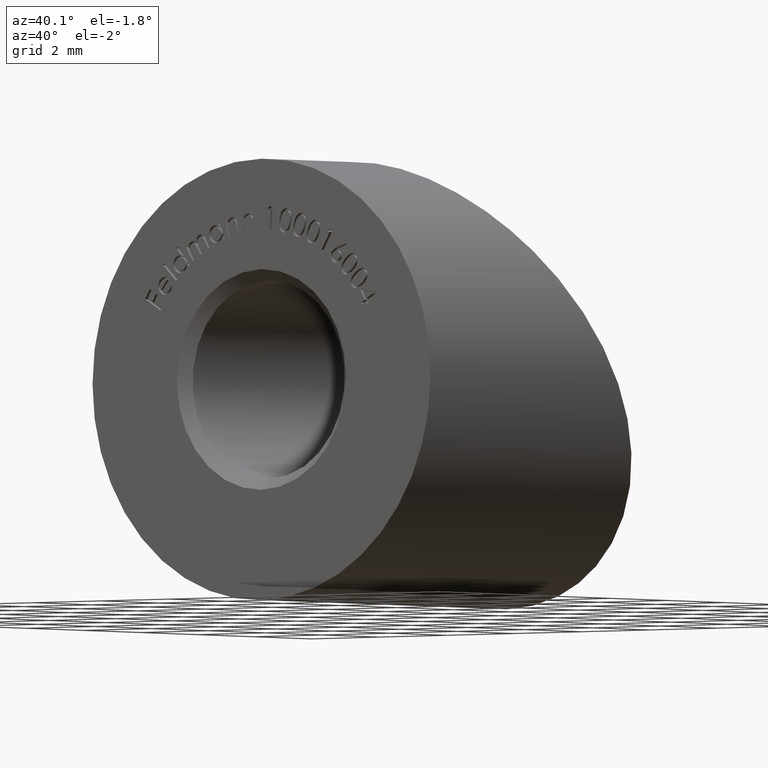
[diagram: clean part render]
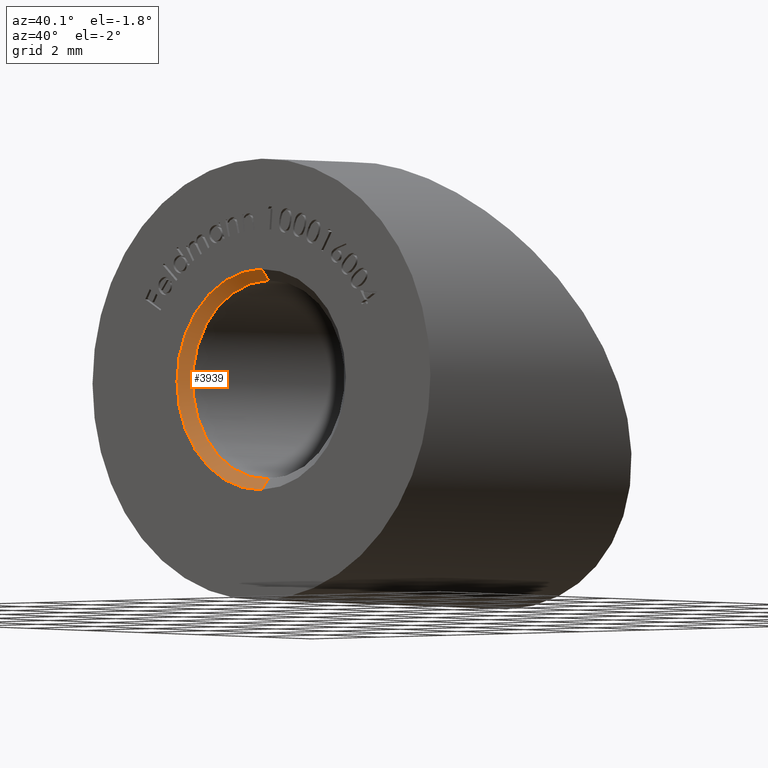
[diagram: same view with one face highlighted and labeled with its STEP entity id]
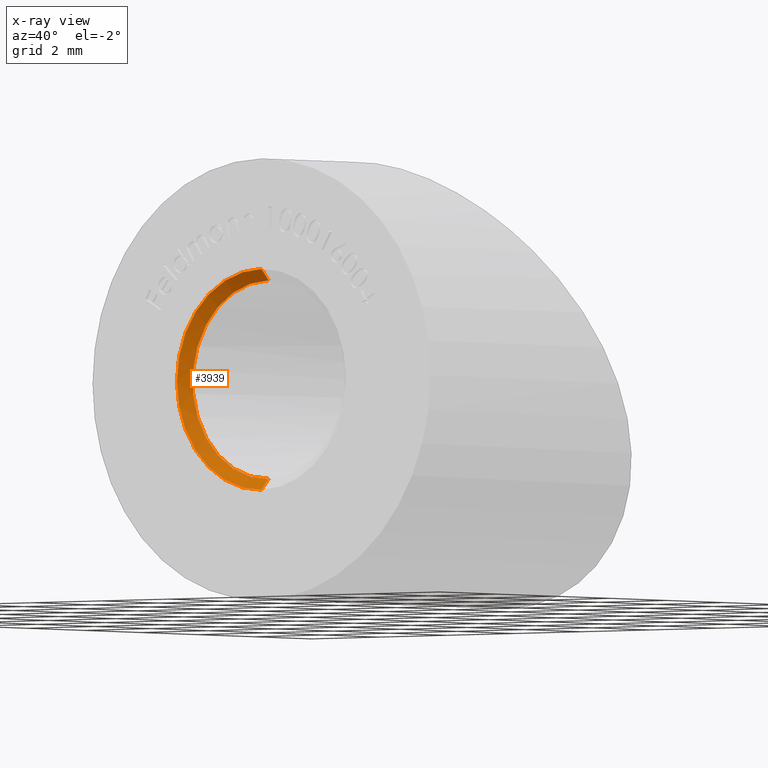
[diagram: x-ray of the same camera — body ghosted, the highlighted face saturated]
A machine part, auxiliary view. The second image highlights one B-rep face of the part: STEP entity #3939.
The next image is the same camera in x-ray: the body ghosted, the highlighted face saturated — about 0% of this face is hidden behind the body in this view.
In plain terms, the highlighted conical surface has half-angle 45 deg.
Its self-contained STEP definition (entity closure, byte-faithful):
#54 = VERTEX_POINT ( 'NONE', #4342 ) ;
#604 = DIRECTION ( 'NONE',  ( 0.0000000000000000000, 0.0000000000000000000, -1.000000000000000000 ) ) ;
#1417 = DIRECTION ( 'NONE',  ( 0.0000000000000000000, 0.0000000000000000000, 1.000000000000000000 ) ) ;
#1598 = VERTEX_POINT ( 'NONE', #5825 ) ;
#1641 = ORIENTED_EDGE ( 'NONE', *, *, #4043, .F. ) ;
#1799 = LINE ( 'NONE', #6284, #2732 ) ;
#1890 = VERTEX_POINT ( 'NONE', #5606 ) ;
#2732 = VECTOR ( 'NONE', #5149, 999.9999999999998900 ) ;
#3713 = AXIS2_PLACEMENT_3D ( 'NONE', #8889, #3803, #604 ) ;
#3756 = DIRECTION ( 'NONE',  ( 0.0000000000000000000, -1.000000000000000000, 0.0000000000000000000 ) ) ;
#3803 = DIRECTION ( 'NONE',  ( 0.0000000000000000000, -1.000000000000000000, 0.0000000000000000000 ) ) ;
#3939 = ADVANCED_FACE ( 'NONE', ( #11453 ), #10146, .F. ) ;
#4043 = EDGE_CURVE ( 'NONE', #54, #1598, #7442, .T. ) ;
#4339 = VERTEX_POINT ( 'NONE', #5229 ) ;
#4342 = CARTESIAN_POINT ( 'NONE',  ( 2.755455298081544300E-016, 0.2499999999999950000, 2.250000000000000000 ) ) ;
#4348 = AXIS2_PLACEMENT_3D ( 'NONE', #8470, #11605, #1417 ) ;
#5149 = DIRECTION ( 'NONE',  ( 0.0000000000000000000, -0.7071067811865469100, -0.7071067811865482400 ) ) ;
#5162 = ORIENTED_EDGE ( 'NONE', *, *, #11595, .T. ) ;
#5229 = CARTESIAN_POINT ( 'NONE',  ( 0.0000000000000000000, 0.0000000000000000000, -2.499999999999995100 ) ) ;
#5360 = ORIENTED_EDGE ( 'NONE', *, *, #10905, .F. ) ;
#5606 = CARTESIAN_POINT ( 'NONE',  ( 3.061616997868377200E-016, 0.0000000000000000000, 2.499999999999995100 ) ) ;
#5825 = CARTESIAN_POINT ( 'NONE',  ( 0.0000000000000000000, 0.2499999999999950000, -2.250000000000000000 ) ) ;
#6226 = CIRCLE ( 'NONE', #4348, 2.499999999999995100 ) ;
#6284 = CARTESIAN_POINT ( 'NONE',  ( 0.0000000000000000000, 0.2499999999999950000, -2.250000000000000000 ) ) ;
#6973 = CARTESIAN_POINT ( 'NONE',  ( 2.755455298081544300E-016, 0.2499999999999950000, 2.250000000000000000 ) ) ;
#7358 = LINE ( 'NONE', #6973, #7663 ) ;
#7389 = AXIS2_PLACEMENT_3D ( 'NONE', #9870, #3756, #10994 ) ;
#7442 = CIRCLE ( 'NONE', #7389, 2.250000000000000000 ) ;
#7663 = VECTOR ( 'NONE', #12077, 999.9999999999998900 ) ;
#8470 = CARTESIAN_POINT ( 'NONE',  ( 0.0000000000000000000, 0.0000000000000000000, 0.0000000000000000000 ) ) ;
#8889 = CARTESIAN_POINT ( 'NONE',  ( 0.0000000000000000000, 0.2499999999999950000, 0.0000000000000000000 ) ) ;
#9870 = CARTESIAN_POINT ( 'NONE',  ( 0.0000000000000000000, 0.2499999999999950000, 0.0000000000000000000 ) ) ;
#10146 = CONICAL_SURFACE ( 'NONE', #3713, 2.250000000000000000, 0.7853981633974491700 ) ;
#10833 = EDGE_CURVE ( 'NONE', #1598, #4339, #1799, .T. ) ;
#10835 = ORIENTED_EDGE ( 'NONE', *, *, #10833, .F. ) ;
#10905 = EDGE_CURVE ( 'NONE', #4339, #1890, #6226, .T. ) ;
#10994 = DIRECTION ( 'NONE',  ( 0.0000000000000000000, 0.0000000000000000000, 1.000000000000000000 ) ) ;
#11453 = FACE_OUTER_BOUND ( 'NONE', #12443, .T. ) ;
#11595 = EDGE_CURVE ( 'NONE', #54, #1890, #7358, .T. ) ;
#11605 = DIRECTION ( 'NONE',  ( 0.0000000000000000000, 1.000000000000000000, 0.0000000000000000000 ) ) ;
#12077 = DIRECTION ( 'NONE',  ( 8.659560562354941500E-017, -0.7071067811865469100, 0.7071067811865482400 ) ) ;
#12443 = EDGE_LOOP ( 'NONE', ( #1641, #5162, #5360, #10835 ) ) ;